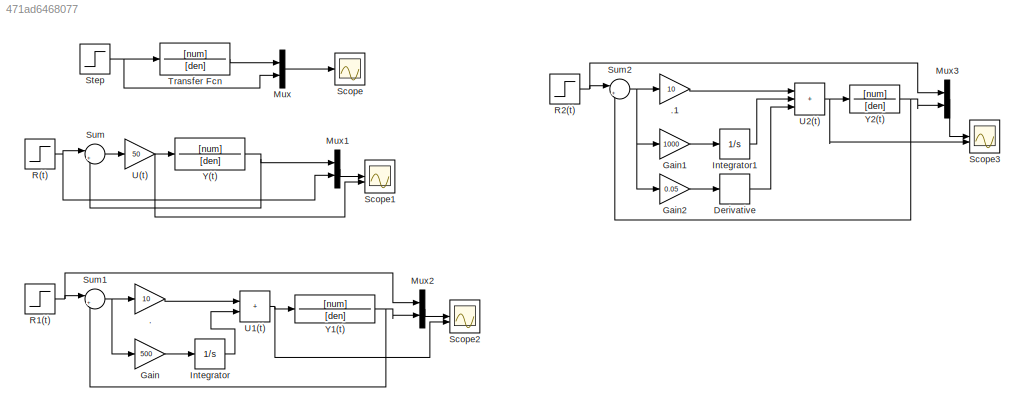
MODEL slx_471ad6468077
KIND model
CONFIG AbsTol = auto
CONFIG EnableMultiTasking = off
CONFIG FixedStep = auto
CONFIG MaxStep = auto
CONFIG MinStep = auto
CONFIG RelTol = 1e-3
CONFIG SampleTimeConstraint = Unconstrained
CONFIG SolverName = VariableStepAuto
CONFIG StartTime = 0.0
CONFIG StopTime = 0.05
BLOCK [Gain] .
  Gain = 10
BLOCK [Gain] .1
  Gain = 10
BLOCK [Derivative] Derivative
BLOCK [Gain] Gain
  Gain = 500
BLOCK [Gain] Gain1
  Gain = 1000
BLOCK [Gain] Gain2
  Gain = 0.05
BLOCK [Integrator] Integrator
BLOCK [Integrator] Integrator1
BLOCK [Mux] Mux
  DisplayOption = bar
  Inputs = 2
BLOCK [Mux] Mux1
  DisplayOption = bar
  Inputs = 2
BLOCK [Mux] Mux2
  DisplayOption = bar
  Inputs = 2
BLOCK [Mux] Mux3
  DisplayOption = bar
  Inputs = 2
BLOCK [Step] R(t)
  After = 5
  SampleTime = 0.0001
  Time = 10*10^(-3)
BLOCK [Step] R1(t)
  After = 5
  SampleTime = 0.0001
  Time = 10*10^(-3)
BLOCK [Step] R2(t)
  After = 5
  SampleTime = 0.0001
  Time = 10*10^(-3)
BLOCK [Scope] Scope
  Floating = off
  NumInputPorts = 1
  ScopeSpecificationString = Simulink.scopes.TimeScopeBlockCfg('CurrentConfiguration', extmgr.ConfigurationSet(extmgr.Configuration('Core','General UI',true),extmgr.Configuration('Core','Source UI',true),extmgr.Configuration('Sources','WiredSimulink',true),extmgr.Configuration('Visuals','Time Domain',true,'SerializedDisplays',{struct('MinYLimReal','-1.05629','MaxYLimReal','9.50659','YLabelReal','','MinYLimMag','0.00000','MaxY...<+1457ch>
BLOCK [Scope] Scope1
  Floating = off
  NumInputPorts = 2
  ScopeSpecificationString = Simulink.scopes.TimeScopeBlockCfg('CurrentConfiguration', extmgr.ConfigurationSet(extmgr.Configuration('Core','General UI',true),extmgr.Configuration('Core','Source UI',true),extmgr.Configuration('Sources','WiredSimulink',true,'DataLoggingVariableName','ScopeData1'),extmgr.Configuration('Visuals','Time Domain',true,'SerializedDisplays',{struct('MinYLimReal','-1.19379','MaxYLimReal','10.7441','YLab...<+2193ch>
BLOCK [Scope] Scope2
  Floating = off
  NumInputPorts = 2
  ScopeSpecificationString = Simulink.scopes.TimeScopeBlockCfg('CurrentConfiguration', extmgr.ConfigurationSet(extmgr.Configuration('Core','General UI',true),extmgr.Configuration('Core','Source UI',true),extmgr.Configuration('Sources','WiredSimulink',true,'DataLoggingVariableName','ScopeData2'),extmgr.Configuration('Visuals','Time Domain',true,'SerializedDisplays',{struct('MinYLimReal','-1.14572','MaxYLimReal','10.31147','YLa...<+2196ch>
BLOCK [Scope] Scope3
  Floating = off
  NumInputPorts = 2
  ScopeSpecificationString = Simulink.scopes.TimeScopeBlockCfg('CurrentConfiguration', extmgr.ConfigurationSet(extmgr.Configuration('Core','General UI',true),extmgr.Configuration('Core','Source UI',true),extmgr.Configuration('Sources','WiredSimulink',true,'DataLoggingVariableName','ScopeData3'),extmgr.Configuration('Visuals','Time Domain',true,'SerializedDisplays',{struct('MinYLimReal','-0.72728','MaxYLimReal','6.54553','YLab...<+2191ch>
BLOCK [Step] Step
  After = 5
  SampleTime = 0.0001
  Time = 10*10^(-3)
BLOCK [Sum] Sum
  Inputs = |+-
BLOCK [Sum] Sum1
  Inputs = |+-
BLOCK [Sum] Sum2
  Inputs = |+-
BLOCK [TransferFcn] Transfer Fcn
  Denominator = [den]
  Numerator = [num]
BLOCK [Gain] U(t)
  Gain = 50
BLOCK [Sum] U1(t)
  IconShape = rectangular
BLOCK [Sum] U2(t)
  IconShape = rectangular
  Inputs = +++
BLOCK [TransferFcn] Y(t)
  Denominator = [den]
  Numerator = [num]
BLOCK [TransferFcn] Y1(t)
  Denominator = [den]
  Numerator = [num]
BLOCK [TransferFcn] Y2(t)
  Denominator = [den]
  Numerator = [num]
LINE .1:1 -> U2(t):1
LINE .:1 -> U1(t):1
LINE Derivative:1 -> U2(t):3
LINE Gain1:1 -> Integrator1:1
LINE Gain2:1 -> Derivative:1
LINE Gain:1 -> Integrator:1
LINE Integrator1:1 -> U2(t):2
LINE Integrator:1 -> U1(t):2
LINE Mux1:1 -> Scope1:1
LINE Mux2:1 -> Scope2:1
LINE Mux3:1 -> Scope3:1
LINE Mux:1 -> Scope:1
NET R(t):1 -> Mux1:2, Sum:1
NET R1(t):1 -> Mux2:1, Sum1:1
NET R2(t):1 -> Mux3:1, Sum2:1
NET Step:1 -> Mux:2, Transfer Fcn:1
NET Sum1:1 -> .:1, Gain:1
NET Sum2:1 -> .1:1, Gain1:1, Gain2:1
LINE Sum:1 -> U(t):1
LINE Transfer Fcn:1 -> Mux:1
NET U(t):1 -> Scope1:2, Y(t):1
NET U1(t):1 -> Scope2:2, Y1(t):1
NET U2(t):1 -> Scope3:2, Y2(t):1
NET Y(t):1 -> Mux1:1, Sum:2
NET Y1(t):1 -> Mux2:2, Sum1:2
NET Y2(t):1 -> Mux3:2, Sum2:2
note: NET lines group one-source signal fan-out (src -> all destinations, sorted); 1:1 wires keep LINE
